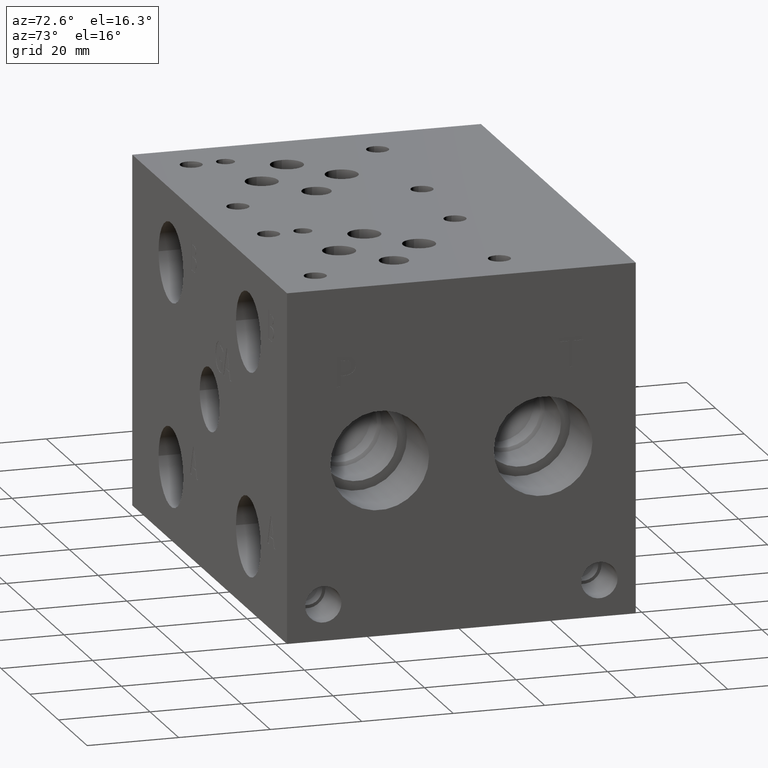
[diagram: clean part render]
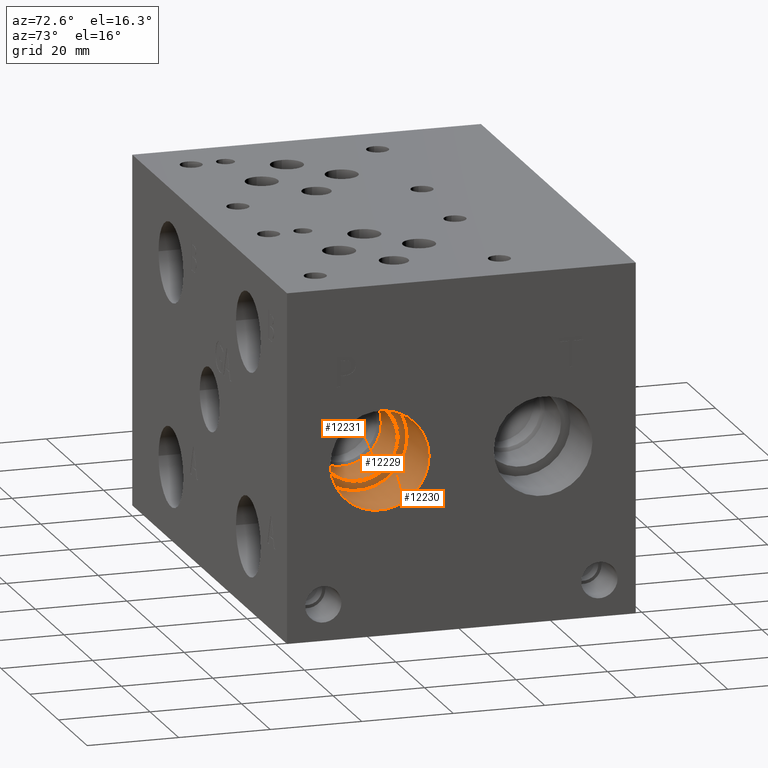
[diagram: same view with one multi-face feature highlighted, each face labeled with its STEP entity id]
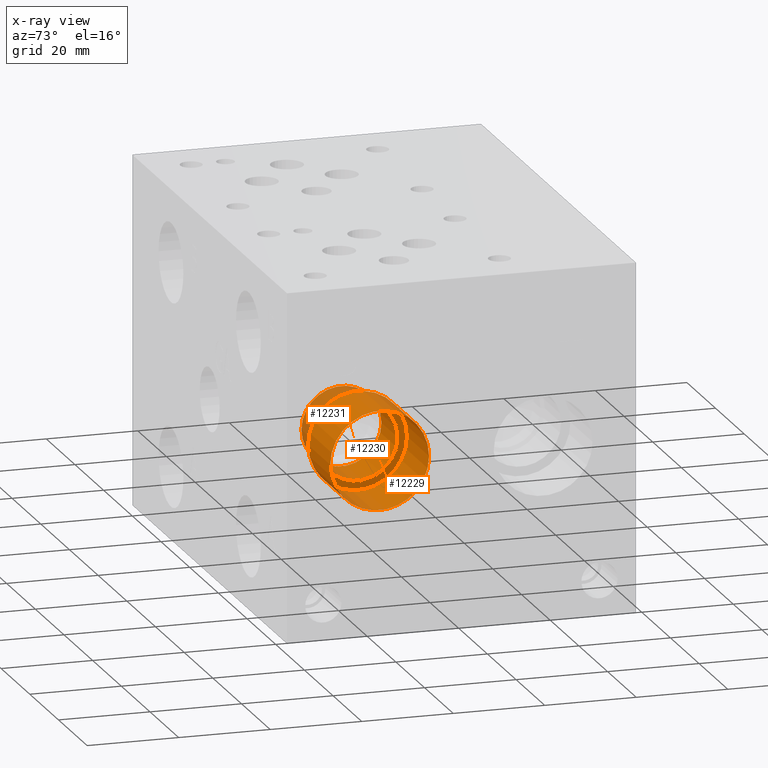
[diagram: x-ray of the same camera — body ghosted, the whole feature saturated]
A machine part, auxiliary view. The highlighted faces form ONE feature: a stepped (counterbored) hole: 2 coaxial cylindrical walls of radii 8.7376 -> 10.795 mm joined by 1 annular planar shoulder face(s). The faces share edges in the B-rep.
The next image is the same camera in x-ray: the body ghosted and the whole hole feature saturated, so the bore chain is visible through the body.
Their STEP definitions:
[1] entity #12230 (Cylinder):
#62=CYLINDRICAL_SURFACE('',#12768,10.795);
#124=CIRCLE('',#12602,10.795);
#125=CIRCLE('',#12603,10.795);
#176=CIRCLE('',#12765,10.795);
#177=CIRCLE('',#12766,10.795);
#1476=FACE_OUTER_BOUND('',#2172,.T.);
#2172=EDGE_LOOP('',(#10310,#10311,#10312,#10313,#10314,#10315));
#3370=LINE('',#20730,#4504);
#4504=VECTOR('',#14918,10.795);
#5260=VERTEX_POINT('',#19152);
#5261=VERTEX_POINT('',#19153);
#5569=VERTEX_POINT('',#20723);
#5570=VERTEX_POINT('',#20724);
#6762=EDGE_CURVE('',#5260,#5261,#124,.T.);
#6763=EDGE_CURVE('',#5261,#5260,#125,.T.);
#7213=EDGE_CURVE('',#5569,#5570,#176,.T.);
#7214=EDGE_CURVE('',#5570,#5569,#177,.T.);
#7216=EDGE_CURVE('',#5261,#5570,#3370,.T.);
#10310=ORIENTED_EDGE('',*,*,#6762,.F.);
#10311=ORIENTED_EDGE('',*,*,#6763,.F.);
#10312=ORIENTED_EDGE('',*,*,#7216,.T.);
#10313=ORIENTED_EDGE('',*,*,#7213,.F.);
#10314=ORIENTED_EDGE('',*,*,#7214,.F.);
#10315=ORIENTED_EDGE('',*,*,#7216,.F.);
#12230=ADVANCED_FACE('',(#1476),#62,.F.);
#12602=AXIS2_PLACEMENT_3D('',#19154,#14285,#14286);
#12603=AXIS2_PLACEMENT_3D('',#19155,#14287,#14288);
#12765=AXIS2_PLACEMENT_3D('',#20725,#14910,#14911);
#12766=AXIS2_PLACEMENT_3D('',#20726,#14912,#14913);
#12768=AXIS2_PLACEMENT_3D('',#20729,#14916,#14917);
#14285=DIRECTION('center_axis',(-1.,0.,0.));
#14286=DIRECTION('ref_axis',(0.,1.,0.));
#14287=DIRECTION('center_axis',(-1.,0.,0.));
#14288=DIRECTION('ref_axis',(0.,1.,0.));
#14910=DIRECTION('center_axis',(1.,0.,0.));
#14911=DIRECTION('ref_axis',(0.,1.,0.));
#14912=DIRECTION('center_axis',(1.,0.,0.));
#14913=DIRECTION('ref_axis',(0.,1.,0.));
#14916=DIRECTION('center_axis',(1.,0.,0.));
#14917=DIRECTION('ref_axis',(0.,1.,0.));
#14918=DIRECTION('',(-1.,0.,0.));
#19152=CARTESIAN_POINT('',(107.95,31.0388,38.1));
#19153=CARTESIAN_POINT('',(107.95,9.4488,38.1));
#19154=CARTESIAN_POINT('Origin',(107.95,20.2438,38.1));
#19155=CARTESIAN_POINT('Origin',(107.95,20.2438,38.1));
#20723=CARTESIAN_POINT('',(92.583,31.0388,38.1));
#20724=CARTESIAN_POINT('',(92.583,9.4488,38.1));
#20725=CARTESIAN_POINT('Origin',(92.583,20.2438,38.1));
#20726=CARTESIAN_POINT('Origin',(92.583,20.2438,38.1));
#20729=CARTESIAN_POINT('Origin',(100.2665,20.2438,38.1));
#20730=CARTESIAN_POINT('',(100.2665,9.4488,38.1));
[2] entity #12231 (Cylinder):
#63=CYLINDRICAL_SURFACE('',#12769,8.7376);
#174=CIRCLE('',#12762,8.7376);
#175=CIRCLE('',#12763,8.7376);
#178=CIRCLE('',#12767,8.7376);
#1477=FACE_OUTER_BOUND('',#2173,.T.);
#2173=EDGE_LOOP('',(#10316,#10317,#10318,#10319,#10320));
#3371=LINE('',#20732,#4505);
#4505=VECTOR('',#14921,8.7376);
#5567=VERTEX_POINT('',#20717);
#5568=VERTEX_POINT('',#20718);
#5571=VERTEX_POINT('',#20727);
#7210=EDGE_CURVE('',#5567,#5568,#174,.T.);
#7212=EDGE_CURVE('',#5568,#5567,#175,.T.);
#7215=EDGE_CURVE('',#5571,#5571,#178,.T.);
#7217=EDGE_CURVE('',#5571,#5568,#3371,.T.);
#10316=ORIENTED_EDGE('',*,*,#7215,.T.);
#10317=ORIENTED_EDGE('',*,*,#7217,.T.);
#10318=ORIENTED_EDGE('',*,*,#7210,.F.);
#10319=ORIENTED_EDGE('',*,*,#7212,.F.);
#10320=ORIENTED_EDGE('',*,*,#7217,.F.);
#12231=ADVANCED_FACE('',(#1477),#63,.F.);
#12762=AXIS2_PLACEMENT_3D('',#20719,#14903,#14904);
#12763=AXIS2_PLACEMENT_3D('',#20721,#14906,#14907);
#12767=AXIS2_PLACEMENT_3D('',#20728,#14914,#14915);
#12769=AXIS2_PLACEMENT_3D('',#20731,#14919,#14920);
#14903=DIRECTION('center_axis',(1.,0.,0.));
#14904=DIRECTION('ref_axis',(0.,1.,0.));
#14906=DIRECTION('center_axis',(1.,0.,0.));
#14907=DIRECTION('ref_axis',(0.,1.,0.));
#14914=DIRECTION('center_axis',(1.,0.,0.));
#14915=DIRECTION('ref_axis',(0.,1.,0.));
#14919=DIRECTION('center_axis',(1.,0.,0.));
#14920=DIRECTION('ref_axis',(0.,1.,0.));
#14921=DIRECTION('',(-1.,0.,0.));
#20717=CARTESIAN_POINT('',(81.24465,28.9814,38.1));
#20718=CARTESIAN_POINT('',(81.24465,11.5062,38.1));
#20719=CARTESIAN_POINT('Origin',(81.24465,20.2438,38.1));
#20721=CARTESIAN_POINT('Origin',(81.24465,20.2438,38.1));
#20727=CARTESIAN_POINT('',(92.583,11.5062,38.1));
#20728=CARTESIAN_POINT('Origin',(92.583,20.2438,38.1));
#20731=CARTESIAN_POINT('Origin',(94.597325,20.2438,38.1));
#20732=CARTESIAN_POINT('',(94.597325,11.5062,38.1));
[3] entity #12229 (Plane):
#176=CIRCLE('',#12765,10.795);
#177=CIRCLE('',#12766,10.795);
#178=CIRCLE('',#12767,8.7376);
#404=FACE_BOUND('',#2171,.T.);
#1475=FACE_OUTER_BOUND('',#2170,.T.);
#2170=EDGE_LOOP('',(#10307,#10308));
#2171=EDGE_LOOP('',(#10309));
#5569=VERTEX_POINT('',#20723);
#5570=VERTEX_POINT('',#20724);
#5571=VERTEX_POINT('',#20727);
#7213=EDGE_CURVE('',#5569,#5570,#176,.T.);
#7214=EDGE_CURVE('',#5570,#5569,#177,.T.);
#7215=EDGE_CURVE('',#5571,#5571,#178,.T.);
#10307=ORIENTED_EDGE('',*,*,#7213,.T.);
#10308=ORIENTED_EDGE('',*,*,#7214,.T.);
#10309=ORIENTED_EDGE('',*,*,#7215,.F.);
#11198=PLANE('',#12764);
#12229=ADVANCED_FACE('',(#1475,#404),#11198,.T.);
#12764=AXIS2_PLACEMENT_3D('',#20722,#14908,#14909);
#12765=AXIS2_PLACEMENT_3D('',#20725,#14910,#14911);
#12766=AXIS2_PLACEMENT_3D('',#20726,#14912,#14913);
#12767=AXIS2_PLACEMENT_3D('',#20728,#14914,#14915);
#14908=DIRECTION('center_axis',(1.,0.,0.));
#14909=DIRECTION('ref_axis',(0.,1.,0.));
#14910=DIRECTION('center_axis',(1.,0.,0.));
#14911=DIRECTION('ref_axis',(0.,1.,0.));
#14912=DIRECTION('center_axis',(1.,0.,0.));
#14913=DIRECTION('ref_axis',(0.,1.,0.));
#14914=DIRECTION('center_axis',(1.,0.,0.));
#14915=DIRECTION('ref_axis',(0.,1.,0.));
#20722=CARTESIAN_POINT('Origin',(92.583,20.2438,38.1));
#20723=CARTESIAN_POINT('',(92.583,31.0388,38.1));
#20724=CARTESIAN_POINT('',(92.583,9.4488,38.1));
#20725=CARTESIAN_POINT('Origin',(92.583,20.2438,38.1));
#20726=CARTESIAN_POINT('Origin',(92.583,20.2438,38.1));
#20727=CARTESIAN_POINT('',(92.583,11.5062,38.1));
#20728=CARTESIAN_POINT('Origin',(92.583,20.2438,38.1));